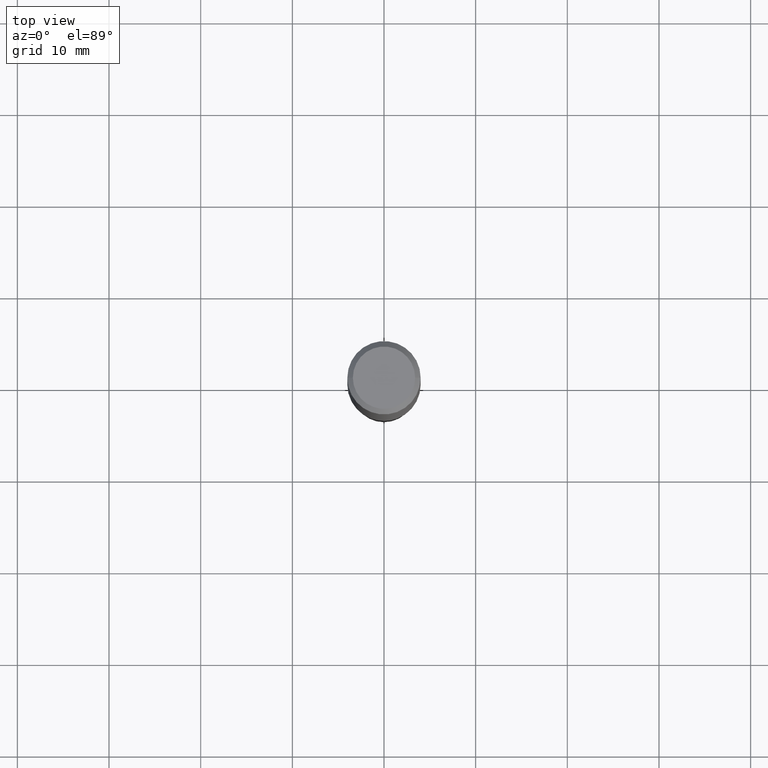
[diagram: clean part render]
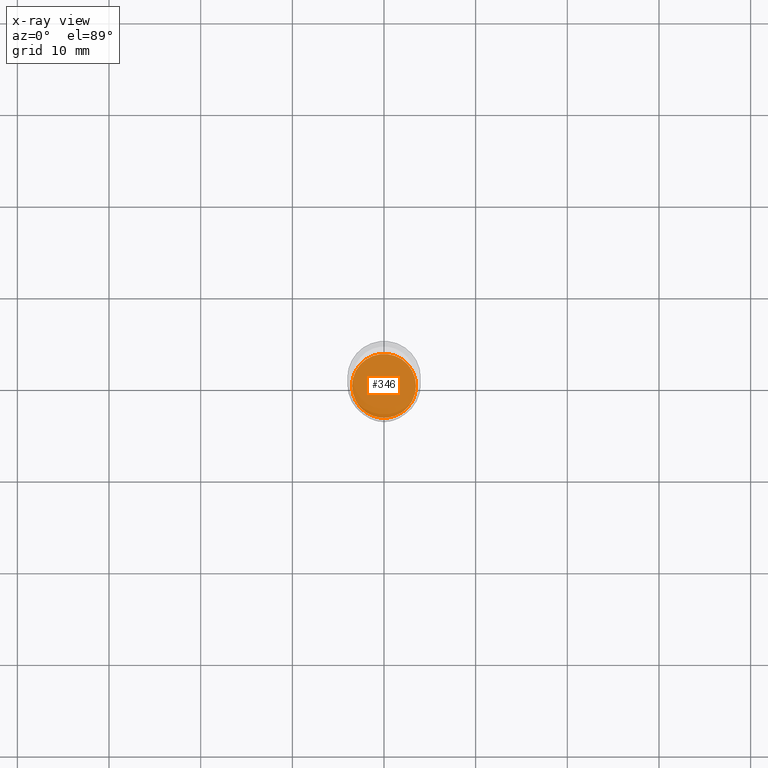
[diagram: x-ray — body ghosted, one internal face saturated and labeled with its STEP entity id]
A machine part, top view, then the same camera in x-ray: the body is ghosted and one INTERNAL B-rep face — a face not visible from any outside direction — is saturated and labeled: STEP entity #346.
In plain terms, the highlighted planar face has unit normal (-0, 0, 1).
Its self-contained STEP definition (entity closure, byte-faithful):
#62 = DIRECTION ( 'NONE',  ( -2.445468806185136597E-29, 3.491481338843145583E-15, 1.000000000000000000 ) ) ;
#82 = PLANE ( 'NONE',  #268 ) ;
#87 = CARTESIAN_POINT ( 'NONE',  ( 0.1373000000000000054, -8.106521372526011094E-15, -2.047200000000000131 ) ) ;
#92 = EDGE_LOOP ( 'NONE', ( #237, #434 ) ) ;
#127 = AXIS2_PLACEMENT_3D ( 'NONE', #166, #277, #265 ) ;
#161 = CIRCLE ( 'NONE', #127, 0.1373000000000000054 ) ;
#166 = CARTESIAN_POINT ( 'NONE',  ( 5.006363740022211680E-29, -7.147760596879688202E-15, -2.047200000000000131 ) ) ;
#174 = DIRECTION ( 'NONE',  ( 1.000000000000000000, -6.982962677686262766E-15, 0.000000000000000000 ) ) ;
#187 = DIRECTION ( 'NONE',  ( -2.438088387897960049E-29, 3.491481338843145188E-15, 1.000000000000000000 ) ) ;
#237 = ORIENTED_EDGE ( 'NONE', *, *, #438, .F. ) ;
#257 = DIRECTION ( 'NONE',  ( 1.000000000000000000, -6.982962677686265922E-15, 4.876176775795935793E-29 ) ) ;
#265 = DIRECTION ( 'NONE',  ( 1.000000000000000000, -6.982962677686262766E-15, 0.000000000000000000 ) ) ;
#268 = AXIS2_PLACEMENT_3D ( 'NONE', #344, #187, #257 ) ;
#270 = VERTEX_POINT ( 'NONE', #355 ) ;
#277 = DIRECTION ( 'NONE',  ( -2.445468806185136597E-29, 3.491481338843145583E-15, 1.000000000000000000 ) ) ;
#286 = CIRCLE ( 'NONE', #348, 0.1373000000000000054 ) ;
#287 = CARTESIAN_POINT ( 'NONE',  ( 5.006363740022211680E-29, -7.147760596879688202E-15, -2.047200000000000131 ) ) ;
#296 = FACE_OUTER_BOUND ( 'NONE', #92, .T. ) ;
#344 = CARTESIAN_POINT ( 'NONE',  ( 5.006363740022211680E-29, -7.147760596879688202E-15, -2.047200000000000131 ) ) ;
#346 = ADVANCED_FACE ( 'NONE', ( #296 ), #82, .F. ) ;
#348 = AXIS2_PLACEMENT_3D ( 'NONE', #287, #62, #174 ) ;
#355 = CARTESIAN_POINT ( 'NONE',  ( -0.1373000000000000054, -6.169536193506959605E-15, -2.047200000000000131 ) ) ;
#364 = EDGE_CURVE ( 'NONE', #270, #396, #286, .T. ) ;
#396 = VERTEX_POINT ( 'NONE', #87 ) ;
#434 = ORIENTED_EDGE ( 'NONE', *, *, #364, .F. ) ;
#438 = EDGE_CURVE ( 'NONE', #396, #270, #161, .T. ) ;